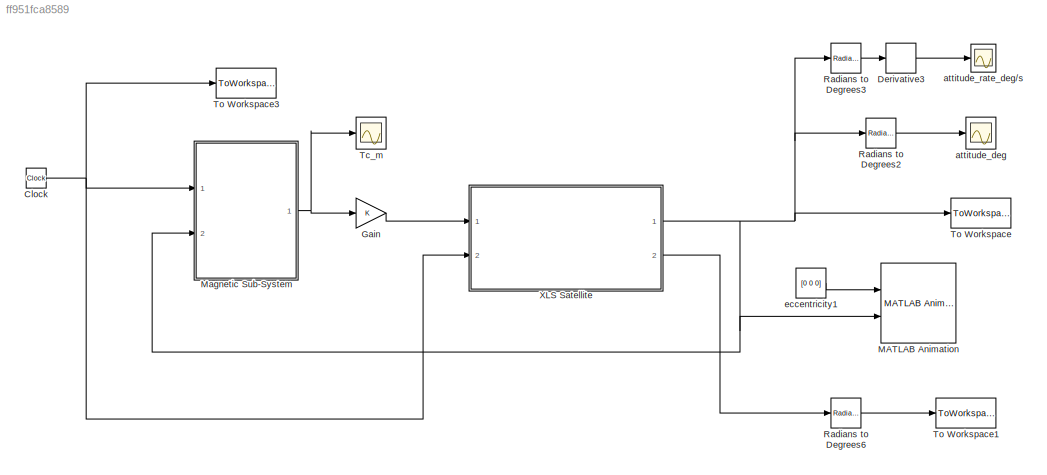
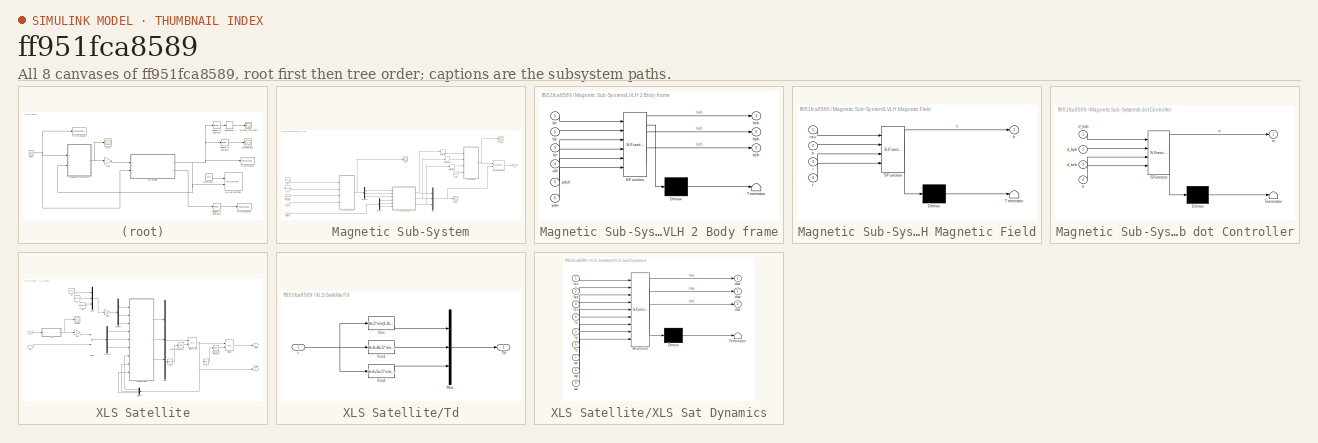
[diagram: thumbnail index - all 8 canvases of the model, root first then tree order]
MODEL slx_ff951fca8589
KIND model
CONFIG AbsTol = auto
CONFIG EnableMultiTasking = on
CONFIG FixedStep = 0.1
CONFIG MaxStep = auto
CONFIG MinStep = auto
CONFIG RelTol = 1e-3
CONFIG SampleTimeConstraint = Unconstrained
CONFIG Solver = FixedStepAuto
CONFIG SolverName = FixedStepAuto
CONFIG StartTime = 0.0
CONFIG StopTime = 25000
BLOCK [Clock] Clock
BLOCK [Derivative] Derivative3
BLOCK [Gain] Gain
  OutDataTypeStr = Inherit: Inherit via internal rule
  ParamDataTypeStr = Inherit: Inherit via internal rule
  SaturateOnIntegerOverflow = off
BLOCK [Reference] MATLAB Animation  REF=aerolibanim/MATLAB
Animation
  Commented = on
  Ports = [2]
  SourceBlock = aerolibanim/MATLAB\nAnimation
  SourceProductBaseCode = AE
  SourceProductName = Aerospace Blockset
  SourceType = AeroMATLABAnimation
  Tag = Matlab Animation 6 DOF
BLOCK [SubSystem] Magnetic Sub-System
  Ports = [2, 1]
  RequestExecContextInheritance = off
  Variant = off
BLOCK [Reference] Magnetic Sub-System/3x3 Cross Product  REF=sharedutil/3x3 Cross Product
  Ports = [2, 1]
  SourceBlock = sharedutil/3x3 Cross Product
  SourceProductBaseCode = AE
  SourceProductName = Aerospace Blockset
  SourceType = CrossProduct
BLOCK [Demux] Magnetic Sub-System/Demux1
  DisplayOption = bar
  Outputs = 3
  Ports = [1, 3]
BLOCK [Demux] Magnetic Sub-System/Demux2
  DisplayOption = bar
  Outputs = 3
  Ports = [1, 3]
BLOCK [Derivative] Magnetic Sub-System/Derivative
BLOCK [Derivative] Magnetic Sub-System/Derivative1
BLOCK [Derivative] Magnetic Sub-System/Derivative2
BLOCK [Constant] Magnetic Sub-System/K_m1
  Value = [dr 0 0 ; 0 dp 0 ; 0 0 dy]
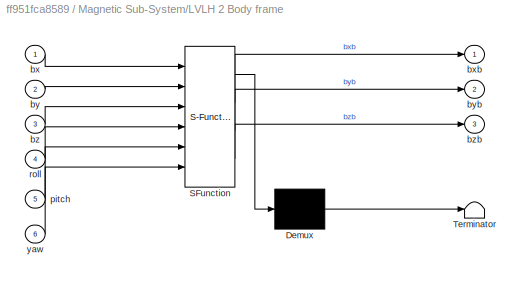
BLOCK [SubSystem] Magnetic Sub-System/LVLH 2 Body frame
  ErrorFcn = Stateflow.Translate.translate
  PermitHierarchicalResolution = ExplicitOnly
  Ports = [6, 3]
  RequestExecContextInheritance = off
  SFBlockType = MATLAB Function
  TreatAsAtomicUnit = on
  Variant = off
BLOCK [Demux] Magnetic Sub-System/LVLH 2 Body frame/ Demux 
  Outputs = 1
  Ports = [1, 1]
BLOCK [S-Function] Magnetic Sub-System/LVLH 2 Body frame/ SFunction 
  EnableBusSupport = on
  FunctionName = sf_sfun
  PortCounts = [6 4]
  Ports = [6, 4]
  SFcnIsStateOwnerBlock = off
  SFunctionDeploymentMode = off
  Tag = Stateflow S-Function XLS_detumbling 10
BLOCK [Terminator] Magnetic Sub-System/LVLH 2 Body frame/ Terminator 
BLOCK [Inport] Magnetic Sub-System/LVLH 2 Body frame/bx
  IconDisplay = Port number
BLOCK [Outport] Magnetic Sub-System/LVLH 2 Body frame/bxb
  IconDisplay = Port number
BLOCK [Inport] Magnetic Sub-System/LVLH 2 Body frame/by
  IconDisplay = Port number
  Port = 2
BLOCK [Outport] Magnetic Sub-System/LVLH 2 Body frame/byb
  IconDisplay = Port number
  Port = 2
BLOCK [Inport] Magnetic Sub-System/LVLH 2 Body frame/bz
  IconDisplay = Port number
  Port = 3
BLOCK [Outport] Magnetic Sub-System/LVLH 2 Body frame/bzb
  IconDisplay = Port number
  Port = 3
BLOCK [Inport] Magnetic Sub-System/LVLH 2 Body frame/pitch
  IconDisplay = Port number
  Port = 5
BLOCK [Inport] Magnetic Sub-System/LVLH 2 Body frame/roll
  IconDisplay = Port number
  Port = 4
BLOCK [Inport] Magnetic Sub-System/LVLH 2 Body frame/yaw
  IconDisplay = Port number
  Port = 6
BLOCK [SubSystem] Magnetic Sub-System/LVLH Magnetic Field
  ErrorFcn = Stateflow.Translate.translate
  PermitHierarchicalResolution = ExplicitOnly
  Ports = [4, 1]
  RequestExecContextInheritance = off
  SFBlockType = MATLAB Function
  TreatAsAtomicUnit = on
  Variant = off
BLOCK [Demux] Magnetic Sub-System/LVLH Magnetic Field/ Demux 
  Outputs = 1
  Ports = [1, 1]
BLOCK [S-Function] Magnetic Sub-System/LVLH Magnetic Field/ SFunction 
  EnableBusSupport = on
  FunctionName = sf_sfun
  PortCounts = [4 2]
  Ports = [4, 2]
  SFcnIsStateOwnerBlock = off
  SFunctionDeploymentMode = off
  Tag = Stateflow S-Function XLS_detumbling 14
BLOCK [Terminator] Magnetic Sub-System/LVLH Magnetic Field/ Terminator 
BLOCK [Inport] Magnetic Sub-System/LVLH Magnetic Field/a
  IconDisplay = Port number
  Port = 2
BLOCK [Outport] Magnetic Sub-System/LVLH Magnetic Field/b
  IconDisplay = Port number
BLOCK [Inport] Magnetic Sub-System/LVLH Magnetic Field/i
  IconDisplay = Port number
  Port = 3
BLOCK [Inport] Magnetic Sub-System/LVLH Magnetic Field/miu
  IconDisplay = Port number
BLOCK [Inport] Magnetic Sub-System/LVLH Magnetic Field/t
  IconDisplay = Port number
  Port = 4
BLOCK [Mux] Magnetic Sub-System/Mux
  DisplayOption = bar
  Inputs = 3
  Ports = [3, 1]
BLOCK [Outport] Magnetic Sub-System/Tm
  IconDisplay = Port number
BLOCK [Constant] Magnetic Sub-System/a
  Value = 6825.589e3
BLOCK [Inport] Magnetic Sub-System/attitude
  IconDisplay = Port number
  Port = 2
BLOCK [Scope] Magnetic Sub-System/b
  NumInputPorts = 1
  Ports = [1]
  ScopeSpecificationString = Simulink.scopes.TimeScopeBlockCfg('CurrentConfiguration', extmgr.ConfigurationSet(extmgr.Configuration('Core','General UI',true),extmgr.Configuration('Core','Source UI',true),extmgr.Configuration('Sources','WiredSimulink',true,'DataLoggingVariableName','ScopeData2','DataLoggingSaveFormat','Array','DataLoggingDecimation','1','DataLoggingDecimateData',true),extmgr.Configuration('Visuals','Time Domai...<+1592ch>
BLOCK [Scope] Magnetic Sub-System/b body
  NumInputPorts = 1
  Ports = [1]
  ScopeSpecificationString = Simulink.scopes.TimeScopeBlockCfg('CurrentConfiguration', extmgr.ConfigurationSet(extmgr.Configuration('Core','General UI',true),extmgr.Configuration('Core','Source UI',true),extmgr.Configuration('Sources','WiredSimulink',true,'DataLoggingVariableName','ScopeData3'),extmgr.Configuration('Visuals','Time Domain',true,'SerializedDisplays',{struct('MinYLimReal','-0.00006','MaxYLimReal','0.00006','YLab...<+1501ch>
BLOCK [SubSystem] Magnetic Sub-System/b dot Controller
  ErrorFcn = Stateflow.Translate.translate
  PermitHierarchicalResolution = ExplicitOnly
  Ports = [4, 1]
  RequestExecContextInheritance = off
  SFBlockType = MATLAB Function
  TreatAsAtomicUnit = on
  Variant = off
BLOCK [Demux] Magnetic Sub-System/b dot Controller/ Demux 
  Outputs = 1
  Ports = [1, 1]
BLOCK [S-Function] Magnetic Sub-System/b dot Controller/ SFunction 
  EnableBusSupport = on
  FunctionName = sf_sfun
  PortCounts = [4 2]
  Ports = [4, 2]
  SFcnIsStateOwnerBlock = off
  SFunctionDeploymentMode = off
  Tag = Stateflow S-Function XLS_detumbling 15
BLOCK [Terminator] Magnetic Sub-System/b dot Controller/ Terminator 
BLOCK [Inport] Magnetic Sub-System/b dot Controller/d_bxb
  IconDisplay = Port number
BLOCK [Inport] Magnetic Sub-System/b dot Controller/d_byb
  IconDisplay = Port number
  Port = 2
BLOCK [Inport] Magnetic Sub-System/b dot Controller/d_bzb
  IconDisplay = Port number
  Port = 3
BLOCK [Inport] Magnetic Sub-System/b dot Controller/k
  IconDisplay = Port number
  Port = 4
BLOCK [Outport] Magnetic Sub-System/b dot Controller/m
  IconDisplay = Port number
BLOCK [Scope] Magnetic Sub-System/b_dot_m
  NumInputPorts = 1
  Ports = [1]
  ScopeSpecificationString = Simulink.scopes.TimeScopeBlockCfg('CurrentConfiguration', extmgr.ConfigurationSet(extmgr.Configuration('Core','General UI',true),extmgr.Configuration('Core','Source UI',true),extmgr.Configuration('Sources','WiredSimulink',true,'DataLoggingVariableName','ScopeData1'),extmgr.Configuration('Visuals','Time Domain',true,'SerializedDisplays',{struct('MinYLimReal','-24.30494','MaxYLimReal','22.64683','YL...<+1439ch>
BLOCK [Constant] Magnetic Sub-System/inclination
  Value = 97.245
BLOCK [Constant] Magnetic Sub-System/miu
  Value = 7.95e15
BLOCK [Inport] Magnetic Sub-System/t
  IconDisplay = Port number
BLOCK [Reference] Radians to Degrees2  REF=simulink_extras/Transformations/Radians
to Degrees
  Ports = [1, 1]
  SourceBlock = simulink_extras/Transformations/Radians\nto Degrees
  SourceProductBaseCode = SL
  SourceProductName = Simulink
  SourceType = RadiansToDegrees
BLOCK [Reference] Radians to Degrees3  REF=simulink_extras/Transformations/Radians
to Degrees
  Ports = [1, 1]
  SourceBlock = simulink_extras/Transformations/Radians\nto Degrees
  SourceProductBaseCode = SL
  SourceProductName = Simulink
  SourceType = RadiansToDegrees
BLOCK [Reference] Radians to Degrees6  REF=simulink_extras/Transformations/Radians
to Degrees
  Ports = [1, 1]
  SourceBlock = simulink_extras/Transformations/Radians\nto Degrees
  SourceProductBaseCode = SL
  SourceProductName = Simulink
  SourceType = RadiansToDegrees
BLOCK [Scope] Tc_m
  NumInputPorts = 1
  Ports = [1]
  ScopeSpecificationString = Simulink.scopes.TimeScopeBlockCfg('CurrentConfiguration', extmgr.ConfigurationSet(extmgr.Configuration('Core','General UI',true),extmgr.Configuration('Core','Source UI',true),extmgr.Configuration('Sources','WiredSimulink',true,'DataLoggingVariableName','ScopeData1','DataLoggingSaveFormat','StructureWithTime','DataLoggingDecimation','1','DataLoggingDecimateData',true),extmgr.Configuration('Visuals'...<+1815ch>
BLOCK [ToWorkspace] To Workspace
  MaxDataPoints = inf
  Ports = [1]
  SampleTime = -1
  VariableName = theta
BLOCK [ToWorkspace] To Workspace1
  MaxDataPoints = inf
  Ports = [1]
  SampleTime = -1
  VariableName = dtheta
BLOCK [ToWorkspace] To Workspace3
  MaxDataPoints = inf
  Ports = [1]
  SampleTime = -1
  VariableName = t
BLOCK [SubSystem] XLS Satellite
  Ports = [2, 2]
  RequestExecContextInheritance = off
  Variant = off
BLOCK [Integrator] XLS Satellite/Attitude
  InitialConditionSource = external
  Ports = [2, 1]
BLOCK [Integrator] XLS Satellite/Attitude_rate
  InitialConditionSource = external
  Ports = [2, 1]
BLOCK [Reference] XLS Satellite/Degrees to Radians  REF=simulink_extras/Transformations/Degrees to
Radians
  Ports = [1, 1]
  SourceBlock = simulink_extras/Transformations/Degrees to\nRadians
  SourceProductBaseCode = SL
  SourceProductName = Simulink
  SourceType = DegreesToRadians
BLOCK [Reference] XLS Satellite/Degrees to Radians1  REF=simulink_extras/Transformations/Degrees to
Radians
  Ports = [1, 1]
  SourceBlock = simulink_extras/Transformations/Degrees to\nRadians
  SourceProductBaseCode = SL
  SourceProductName = Simulink
  SourceType = DegreesToRadians
BLOCK [Demux] XLS Satellite/Demux
  DisplayOption = bar
  Outputs = 3
  Ports = [1, 3]
BLOCK [Demux] XLS Satellite/Demux1
  DisplayOption = bar
  Outputs = 3
  Ports = [1, 3]
BLOCK [Demux] XLS Satellite/Demux3
  DisplayOption = bar
  Outputs = 3
  Ports = [1, 3]
BLOCK [Gain] XLS Satellite/Gain
  Gain = 0
  OutDataTypeStr = Inherit: Inherit via internal rule
  ParamDataTypeStr = Inherit: Inherit via internal rule
  SaturateOnIntegerOverflow = off
BLOCK [Gain] XLS Satellite/Gain1
  Gain = 1.1
  OutDataTypeStr = Inherit: Inherit via internal rule
  ParamDataTypeStr = Inherit: Inherit via internal rule
  SaturateOnIntegerOverflow = off
BLOCK [Constant] XLS Satellite/I4
  Value = attitude_0
BLOCK [Constant] XLS Satellite/I5
  Value = attitude_rate_0
BLOCK [Constant] XLS Satellite/Ixx
  Value = 4.77712e2
BLOCK [Constant] XLS Satellite/Iyy
  Value = 4.39791e3
BLOCK [Constant] XLS Satellite/Izz
  Value = 4.330551e3
BLOCK [Mux] XLS Satellite/Mux
  DisplayOption = bar
  Inputs = 3
  Ports = [3, 1]
BLOCK [Mux] XLS Satellite/Mux2
  DisplayOption = bar
  Inputs = 3
  Ports = [3, 1]
BLOCK [Scope] XLS Satellite/Scope
  NumInputPorts = 1
  Ports = [1]
  ScopeSpecificationString = Simulink.scopes.TimeScopeBlockCfg('CurrentConfiguration', extmgr.ConfigurationSet(extmgr.Configuration('Core','General UI',true),extmgr.Configuration('Core','Source UI',true),extmgr.Configuration('Sources','WiredSimulink',true,'DataLoggingVariableName','ScopeData3'),extmgr.Configuration('Visuals','Time Domain',true,'SerializedDisplays',{struct('MinYLimReal','-0.000009','MaxYLimReal','0.00008','YLa...<+1437ch>
BLOCK [Sum] XLS Satellite/Sum4
  InputSameDT = off
  OutDataTypeStr = Inherit: Inherit via internal rule
  Ports = [2, 1]
  SaturateOnIntegerOverflow = off
BLOCK [SubSystem] XLS Satellite/Td
  Ports = [1, 1]
  RequestExecContextInheritance = off
  Variant = off
BLOCK [Fcn] XLS Satellite/Td/Fcn
  Expr = 8e-5*sin(1.2e-3*u)
BLOCK [Fcn] XLS Satellite/Td/Fcn1
  Expr = 8e-6+8e-5*sin(1.2e-3*u)+5e-5*cos(1.2e-3*u)
BLOCK [Fcn] XLS Satellite/Td/Fcn2
  Expr = 8e-6+5e-5*cos(1.2e-3*u)
BLOCK [Mux] XLS Satellite/Td/Mux
  DisplayOption = bar
  Inputs = 3
  Ports = [3, 1]
BLOCK [Outport] XLS Satellite/Td/Td
  IconDisplay = Port number
BLOCK [Inport] XLS Satellite/Td/t
  IconDisplay = Port number
BLOCK [Outport] XLS Satellite/Theta
  IconDisplay = Port number
BLOCK [Inport] XLS Satellite/Tm
  IconDisplay = Port number
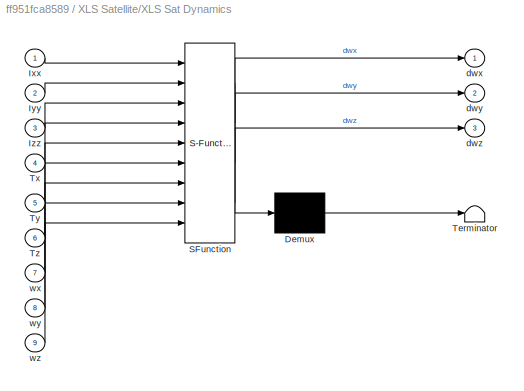
BLOCK [SubSystem] XLS Satellite/XLS Sat Dynamics
  ErrorFcn = Stateflow.Translate.translate
  PermitHierarchicalResolution = ExplicitOnly
  Ports = [9, 3]
  RequestExecContextInheritance = off
  SFBlockType = MATLAB Function
  TreatAsAtomicUnit = on
  Variant = off
BLOCK [Demux] XLS Satellite/XLS Sat Dynamics/ Demux 
  Outputs = 1
  Ports = [1, 1]
BLOCK [S-Function] XLS Satellite/XLS Sat Dynamics/ SFunction 
  EnableBusSupport = on
  FunctionName = sf_sfun
  PortCounts = [9 4]
  Ports = [9, 4]
  SFcnIsStateOwnerBlock = off
  SFunctionDeploymentMode = off
  Tag = Stateflow S-Function XLS_detumbling 1
BLOCK [Terminator] XLS Satellite/XLS Sat Dynamics/ Terminator 
BLOCK [Inport] XLS Satellite/XLS Sat Dynamics/Ixx
  IconDisplay = Port number
BLOCK [Inport] XLS Satellite/XLS Sat Dynamics/Iyy
  IconDisplay = Port number
  Port = 2
BLOCK [Inport] XLS Satellite/XLS Sat Dynamics/Izz
  IconDisplay = Port number
  Port = 3
BLOCK [Inport] XLS Satellite/XLS Sat Dynamics/Tx
  IconDisplay = Port number
  Port = 4
BLOCK [Inport] XLS Satellite/XLS Sat Dynamics/Ty
  IconDisplay = Port number
  Port = 5
BLOCK [Inport] XLS Satellite/XLS Sat Dynamics/Tz
  IconDisplay = Port number
  Port = 6
BLOCK [Outport] XLS Satellite/XLS Sat Dynamics/dwx
  IconDisplay = Port number
BLOCK [Outport] XLS Satellite/XLS Sat Dynamics/dwy
  IconDisplay = Port number
  Port = 2
BLOCK [Outport] XLS Satellite/XLS Sat Dynamics/dwz
  IconDisplay = Port number
  Port = 3
BLOCK [Inport] XLS Satellite/XLS Sat Dynamics/wx
  IconDisplay = Port number
  Port = 7
BLOCK [Inport] XLS Satellite/XLS Sat Dynamics/wy
  IconDisplay = Port number
  Port = 8
BLOCK [Inport] XLS Satellite/XLS Sat Dynamics/wz
  IconDisplay = Port number
  Port = 9
BLOCK [Outport] XLS Satellite/d_theta
  IconDisplay = Port number
  Port = 2
BLOCK [Inport] XLS Satellite/t
  IconDisplay = Port number
  Port = 2
BLOCK [Scope] attitude_deg
  NumInputPorts = 1
  Ports = [1]
  ScopeSpecificationString = Simulink.scopes.TimeScopeBlockCfg('CurrentConfiguration', extmgr.ConfigurationSet(extmgr.Configuration('Core','General UI',true),extmgr.Configuration('Core','Source UI',true),extmgr.Configuration('Sources','WiredSimulink',true,'DataLoggingVariableName','ScopeData2'),extmgr.Configuration('Visuals','Time Domain',true,'SerializedDisplays',{struct('MinYLimReal','-455.28885','MaxYLimReal','2457.49432',...<+1519ch>
BLOCK [Scope] attitude_rate_deg//s
  NumInputPorts = 1
  Ports = [1]
  ScopeSpecificationString = Simulink.scopes.TimeScopeBlockCfg('CurrentConfiguration', extmgr.ConfigurationSet(extmgr.Configuration('Core','General UI',true),extmgr.Configuration('Core','Source UI',true),extmgr.Configuration('Sources','WiredSimulink',true,'DataLoggingVariableName','ScopeData4'),extmgr.Configuration('Visuals','Time Domain',true,'SerializedDisplays',{struct('MinYLimReal','-0.15561','MaxYLimReal','0.15561','YLab...<+1478ch>
BLOCK [Constant] eccentricity1
  Commented = on
  Value = [0 0 0]
NET Clock:1 -> Magnetic Sub-System:1, To Workspace3:1, XLS Satellite:2
LINE Derivative3:1 -> attitude_rate_deg//s:1
LINE Gain:1 -> XLS Satellite:1
LINE Magnetic Sub-System/3x3 Cross Product:1 -> Magnetic Sub-System/Tm:1
LINE Magnetic Sub-System/Demux1:1 -> Magnetic Sub-System/LVLH 2 Body frame:4
LINE Magnetic Sub-System/Demux1:2 -> Magnetic Sub-System/LVLH 2 Body frame:5
LINE Magnetic Sub-System/Demux1:3 -> Magnetic Sub-System/LVLH 2 Body frame:6
LINE Magnetic Sub-System/Demux2:1 -> Magnetic Sub-System/LVLH 2 Body frame:1
LINE Magnetic Sub-System/Demux2:2 -> Magnetic Sub-System/LVLH 2 Body frame:2
LINE Magnetic Sub-System/Demux2:3 -> Magnetic Sub-System/LVLH 2 Body frame:3
LINE Magnetic Sub-System/Derivative1:1 -> Magnetic Sub-System/b dot Controller:2
LINE Magnetic Sub-System/Derivative2:1 -> Magnetic Sub-System/b dot Controller:3
LINE Magnetic Sub-System/Derivative:1 -> Magnetic Sub-System/b dot Controller:1
LINE Magnetic Sub-System/K_m1:1 -> Magnetic Sub-System/b dot Controller:4
NET Magnetic Sub-System/LVLH 2 Body frame:1 -> Magnetic Sub-System/Derivative:1, Magnetic Sub-System/Mux:1
NET Magnetic Sub-System/LVLH 2 Body frame:2 -> Magnetic Sub-System/Derivative1:1, Magnetic Sub-System/Mux:2
NET Magnetic Sub-System/LVLH 2 Body frame:3 -> Magnetic Sub-System/Derivative2:1, Magnetic Sub-System/Mux:3
NET Magnetic Sub-System/LVLH Magnetic Field:1 -> Magnetic Sub-System/Demux2:1, Magnetic Sub-System/b:1
NET Magnetic Sub-System/Mux:1 -> Magnetic Sub-System/3x3 Cross Product:2, Magnetic Sub-System/b body:1
LINE Magnetic Sub-System/a:1 -> Magnetic Sub-System/LVLH Magnetic Field:2
LINE Magnetic Sub-System/attitude:1 -> Magnetic Sub-System/Demux1:1
NET Magnetic Sub-System/b dot Controller:1 -> Magnetic Sub-System/3x3 Cross Product:1, Magnetic Sub-System/b_dot_m:1
LINE Magnetic Sub-System/inclination:1 -> Magnetic Sub-System/LVLH Magnetic Field:3
LINE Magnetic Sub-System/miu:1 -> Magnetic Sub-System/LVLH Magnetic Field:1
LINE Magnetic Sub-System/t:1 -> Magnetic Sub-System/LVLH Magnetic Field:4
NET Magnetic Sub-System:1 -> Gain:1, Tc_m:1
LINE Radians to Degrees2:1 -> attitude_deg:1
LINE Radians to Degrees3:1 -> Derivative3:1
LINE Radians to Degrees6:1 -> To Workspace1:1
LINE XLS Satellite/Attitude:1 -> XLS Satellite/Theta:1
NET XLS Satellite/Attitude_rate:1 -> XLS Satellite/Attitude:1, XLS Satellite/Demux:1, XLS Satellite/d_theta:1
LINE XLS Satellite/Degrees to Radians1:1 -> XLS Satellite/Attitude:2
LINE XLS Satellite/Degrees to Radians:1 -> XLS Satellite/Attitude_rate:2
LINE XLS Satellite/Demux1:1 -> XLS Satellite/XLS Sat Dynamics:4
LINE XLS Satellite/Demux1:2 -> XLS Satellite/XLS Sat Dynamics:5
LINE XLS Satellite/Demux1:3 -> XLS Satellite/XLS Sat Dynamics:6
LINE XLS Satellite/Demux3:1 -> XLS Satellite/XLS Sat Dynamics:1
LINE XLS Satellite/Demux3:2 -> XLS Satellite/XLS Sat Dynamics:2
LINE XLS Satellite/Demux3:3 -> XLS Satellite/XLS Sat Dynamics:3
LINE XLS Satellite/Demux:1 -> XLS Satellite/XLS Sat Dynamics:7
LINE XLS Satellite/Demux:2 -> XLS Satellite/XLS Sat Dynamics:8
LINE XLS Satellite/Demux:3 -> XLS Satellite/XLS Sat Dynamics:9
LINE XLS Satellite/Gain1:1 -> XLS Satellite/Demux3:1
LINE XLS Satellite/Gain:1 -> XLS Satellite/Sum4:1
LINE XLS Satellite/I4:1 -> XLS Satellite/Degrees to Radians1:1
LINE XLS Satellite/I5:1 -> XLS Satellite/Degrees to Radians:1
LINE XLS Satellite/Ixx:1 -> XLS Satellite/Mux2:1
LINE XLS Satellite/Iyy:1 -> XLS Satellite/Mux2:2
LINE XLS Satellite/Izz:1 -> XLS Satellite/Mux2:3
LINE XLS Satellite/Mux2:1 -> XLS Satellite/Gain1:1
LINE XLS Satellite/Mux:1 -> XLS Satellite/Attitude_rate:1
LINE XLS Satellite/Sum4:1 -> XLS Satellite/Demux1:1
LINE XLS Satellite/Td/Fcn1:1 -> XLS Satellite/Td/Mux:2
LINE XLS Satellite/Td/Fcn2:1 -> XLS Satellite/Td/Mux:3
LINE XLS Satellite/Td/Fcn:1 -> XLS Satellite/Td/Mux:1
LINE XLS Satellite/Td/Mux:1 -> XLS Satellite/Td/Td:1
NET XLS Satellite/Td/t:1 -> XLS Satellite/Td/Fcn1:1, XLS Satellite/Td/Fcn2:1, XLS Satellite/Td/Fcn:1
NET XLS Satellite/Td:1 -> XLS Satellite/Gain:1, XLS Satellite/Scope:1
LINE XLS Satellite/Tm:1 -> XLS Satellite/Sum4:2
LINE XLS Satellite/XLS Sat Dynamics:1 -> XLS Satellite/Mux:1
LINE XLS Satellite/XLS Sat Dynamics:2 -> XLS Satellite/Mux:2
LINE XLS Satellite/XLS Sat Dynamics:3 -> XLS Satellite/Mux:3
LINE XLS Satellite/t:1 -> XLS Satellite/Td:1
NET XLS Satellite:1 -> MATLAB Animation:2, Magnetic Sub-System:2, Radians to Degrees2:1, Radians to Degrees3:1, To Workspace:1
LINE XLS Satellite:2 -> Radians to Degrees6:1
LINE eccentricity1:1 -> MATLAB Animation:1
note: NET lines group one-source signal fan-out (src -> all destinations, sorted); 1:1 wires keep LINE
CHART XLS Satellite/XLS Sat Dynamics states=1 transitions=1
  STATE_LABEL 'eML_blk_kernel()'
  STATE_LABEL 'SCRIPT:\nfunction [dwx,dwy,dwz] = Satellite(Ixx,Iyy,Izz,Tx,Ty,Tz,wx,wy,wz)\n\ndwx = (Tx-(Iyy-Izz)*wz*wy)/Ixx;\ndwy = (Ty-(Izz-Ixx)*wx*wz)/Iyy;\ndwz = (Tz-(Ixx-Iyy)*wy*wx)/Izz;'
CHART Magnetic Sub-System/LVLH 2 Body frame states=1 transitions=1
  STATE_LABEL 'eML_blk_kernel()'
  STATE_LABEL 'SCRIPT:\nfunction [bxb,byb,bzb] = fcn(bx,by,bz,roll,pitch,yaw)\nbb=[cos(pitch)          ,-cos(yaw)*sin(pitch)                               ,sin(pitch)*sin(yaw);\n    cos(roll)*sin(pitch), cos(roll)*cos(pitch)*cos(yaw)-sin(roll)*sin(yaw)  ,-cos(yaw)*sin(roll)-cos(roll)*cos(pitch)*sin(yaw);\n    sin(roll)*sin(pitch), cos(roll)*sin(yaw)+cos(pitch)*cos(yaw)*sin(roll)   , cos(roll)*cos(yaw)-cos(pitch)*sin...<+63ch>'
CHART Magnetic Sub-System/LVLH Magnetic Field states=1 transitions=1
  STATE_LABEL 'eML_blk_kernel()'
  STATE_LABEL 'SCRIPT:\nfunction b = magnetic_field(miu,a,i,t)\n\nb = miu/a^3*[sin(deg2rad(i))*cos(1.2e-3*t);\n    -cos(deg2rad(i));\n    2*sin(deg2rad(i))*sin(1.2e-3*t)];\n'
CHART Magnetic Sub-System/b dot Controller states=1 transitions=1
  STATE_LABEL 'eML_blk_kernel()'
  STATE_LABEL 'SCRIPT:\nfunction m = fcn(d_bxb, d_byb, d_bzb, k)\nm=-k*[d_bxb ;d_byb ;d_bzb];\nfor i=1:3\n    if m(i)>110\n        m(i)=110;\n    end\n    if m(i)<-110\n        m(i)=-110;\n    end\nend\n%cross(m,[bxb ; byb ; bzb]);'
